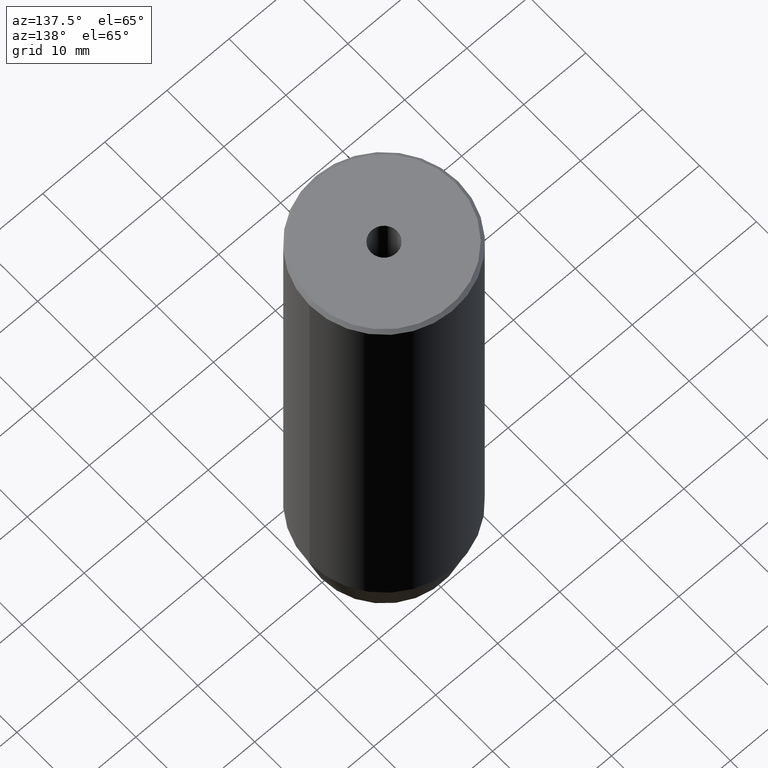
[diagram: clean part render]
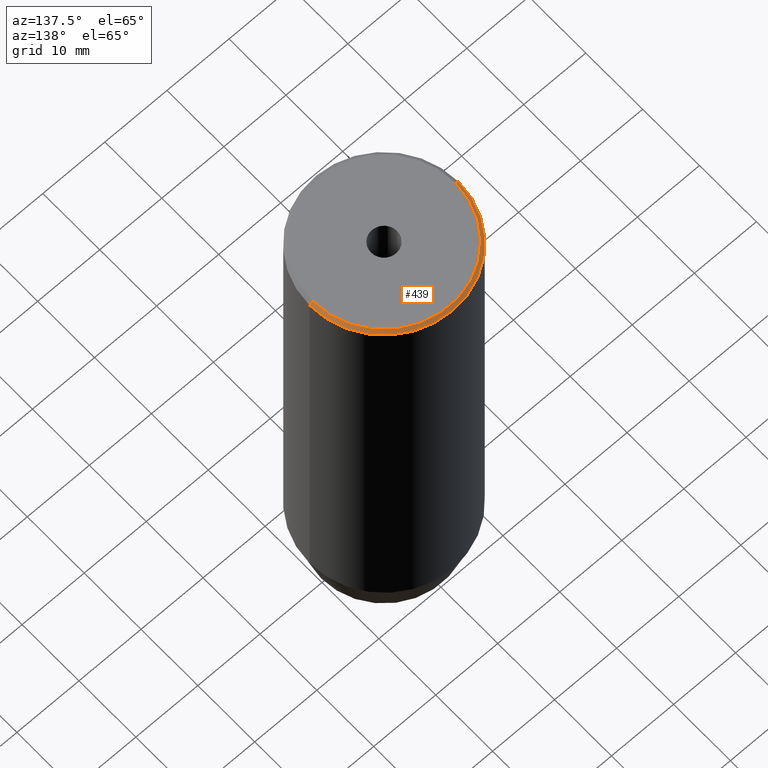
[diagram: same view with one face highlighted and labeled with its STEP entity id]
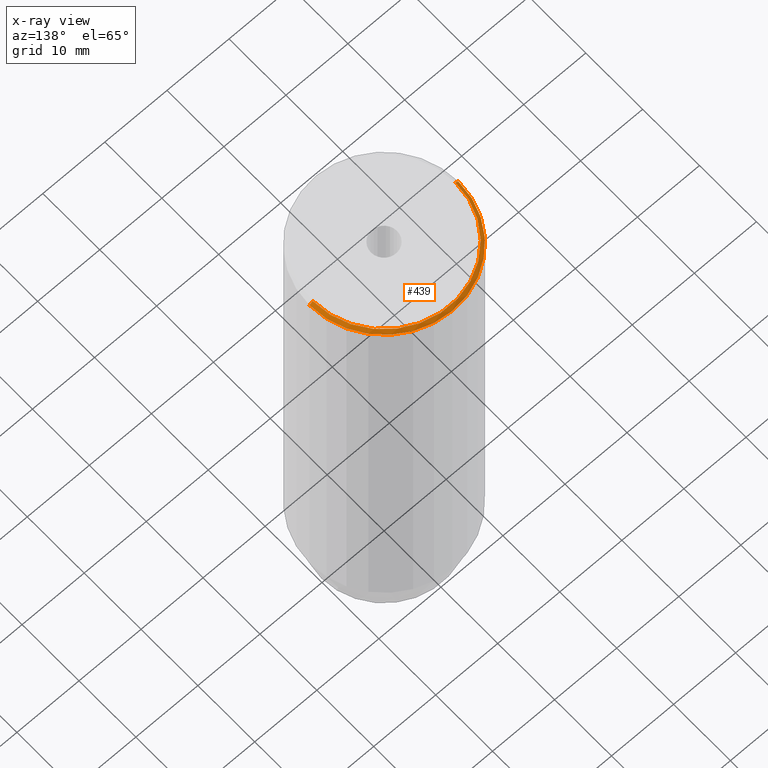
[diagram: x-ray of the same camera — body ghosted, the highlighted face saturated]
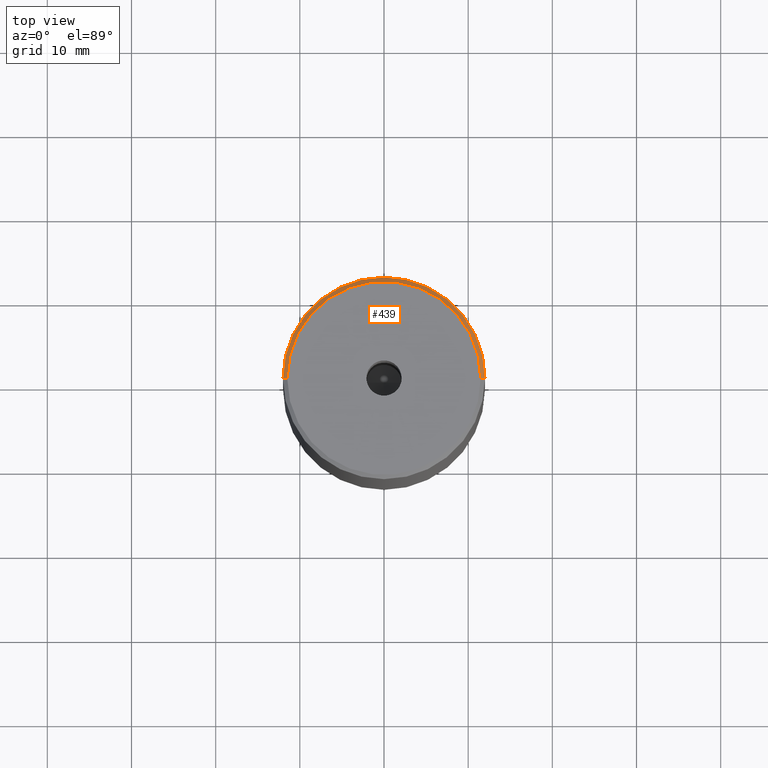
[diagram: same view with one face highlighted and labeled with its STEP entity id]
A machine part, auxiliary view. The second image highlights one B-rep face of the part: STEP entity #439.
The next image is the same camera in x-ray: the body ghosted, the highlighted face saturated — about 0% of this face is hidden behind the body in this view.
A second angle (top view) of the same face is appended — the face is thin or edge-on in the first view.
In plain terms, the highlighted conical surface has half-angle 45 deg.
Its self-contained STEP definition (entity closure, byte-faithful):
#34 = CARTESIAN_POINT ( 'NONE',  ( 0.000000000000000000, 0.000000000000000000, 0.000000000000000000 ) ) ;
#51 = CARTESIAN_POINT ( 'NONE',  ( -12.00000000000000000, 1.469576158976823947E-15, -0.5000000000000056621 ) ) ;
#66 = EDGE_CURVE ( 'NONE', #249, #104, #216, .T. ) ;
#69 = LINE ( 'NONE', #358, #367 ) ;
#71 = DIRECTION ( 'NONE',  ( 0.000000000000000000, 0.000000000000000000, -1.000000000000000000 ) ) ;
#85 = ORIENTED_EDGE ( 'NONE', *, *, #66, .F. ) ;
#100 = VECTOR ( 'NONE', #517, 1000.000000000000114 ) ;
#104 = VERTEX_POINT ( 'NONE', #580 ) ;
#118 = DIRECTION ( 'NONE',  ( -1.000000000000000000, 0.000000000000000000, 0.000000000000000000 ) ) ;
#127 = VERTEX_POINT ( 'NONE', #398 ) ;
#140 = EDGE_CURVE ( 'NONE', #256, #104, #69, .T. ) ;
#151 = DIRECTION ( 'NONE',  ( 1.000000000000000000, 0.000000000000000000, 0.000000000000000000 ) ) ;
#169 = DIRECTION ( 'NONE',  ( 0.7071067811865474617, 8.659560562354932858E-17, -0.7071067811865474617 ) ) ;
#202 = EDGE_CURVE ( 'NONE', #256, #127, #468, .T. ) ;
#211 = DIRECTION ( 'NONE',  ( 0.000000000000000000, 0.000000000000000000, -1.000000000000000000 ) ) ;
#212 = ORIENTED_EDGE ( 'NONE', *, *, #202, .F. ) ;
#216 = CIRCLE ( 'NONE', #449, 12.00000000000000000 ) ;
#218 = ORIENTED_EDGE ( 'NONE', *, *, #140, .T. ) ;
#234 = CARTESIAN_POINT ( 'NONE',  ( 11.49999999999999467, 1.438959988998139766E-15, 0.000000000000000000 ) ) ;
#249 = VERTEX_POINT ( 'NONE', #51 ) ;
#250 = FACE_OUTER_BOUND ( 'NONE', #416, .T. ) ;
#251 = AXIS2_PLACEMENT_3D ( 'NONE', #34, #211, #118 ) ;
#256 = VERTEX_POINT ( 'NONE', #234 ) ;
#299 = EDGE_CURVE ( 'NONE', #127, #249, #383, .T. ) ;
#358 = CARTESIAN_POINT ( 'NONE',  ( 11.49999999999999467, 1.408343819019455584E-15, 0.000000000000000000 ) ) ;
#367 = VECTOR ( 'NONE', #169, 1000.000000000000114 ) ;
#383 = LINE ( 'NONE', #561, #100 ) ;
#398 = CARTESIAN_POINT ( 'NONE',  ( -11.49999999999999467, 0.000000000000000000, 0.000000000000000000 ) ) ;
#416 = EDGE_LOOP ( 'NONE', ( #212, #218, #85, #587 ) ) ;
#439 = ADVANCED_FACE ( 'NONE', ( #250 ), #571, .T. ) ;
#440 = DIRECTION ( 'NONE',  ( 1.000000000000000000, 0.000000000000000000, 0.000000000000000000 ) ) ;
#449 = AXIS2_PLACEMENT_3D ( 'NONE', #483, #71, #440 ) ;
#468 = CIRCLE ( 'NONE', #506, 11.49999999999999467 ) ;
#476 = DIRECTION ( 'NONE',  ( -0.000000000000000000, -0.000000000000000000, 1.000000000000000000 ) ) ;
#483 = CARTESIAN_POINT ( 'NONE',  ( 0.000000000000000000, 0.000000000000000000, -0.5000000000000056621 ) ) ;
#506 = AXIS2_PLACEMENT_3D ( 'NONE', #558, #476, #151 ) ;
#517 = DIRECTION ( 'NONE',  ( -0.7071067811865474617, 0.000000000000000000, -0.7071067811865474617 ) ) ;
#558 = CARTESIAN_POINT ( 'NONE',  ( 0.000000000000000000, 0.000000000000000000, 0.000000000000000000 ) ) ;
#561 = CARTESIAN_POINT ( 'NONE',  ( -11.49999999999999467, 0.000000000000000000, 0.000000000000000000 ) ) ;
#571 = CONICAL_SURFACE ( 'NONE', #251, 11.49999999999999467, 0.7853981633974482790 ) ;
#580 = CARTESIAN_POINT ( 'NONE',  ( 12.00000000000000000, 0.000000000000000000, -0.5000000000000056621 ) ) ;
#587 = ORIENTED_EDGE ( 'NONE', *, *, #299, .F. ) ;